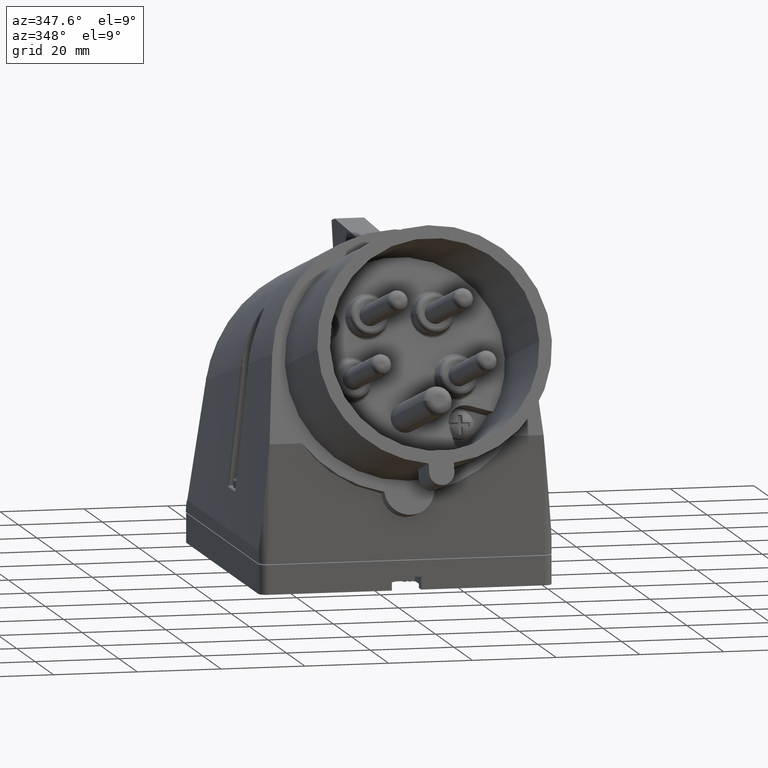
[diagram: clean part render]
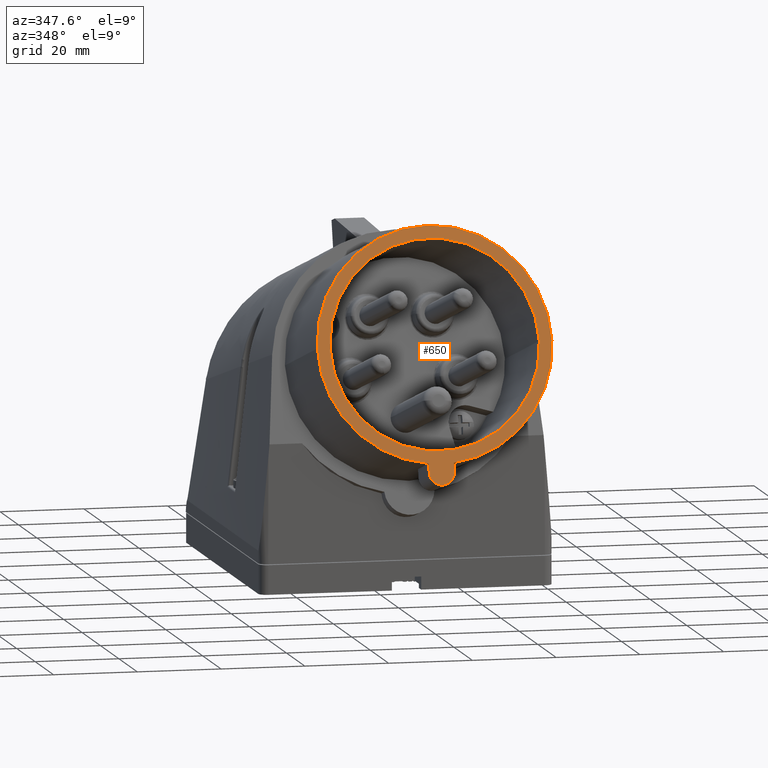
[diagram: same view with one face highlighted and labeled with its STEP entity id]
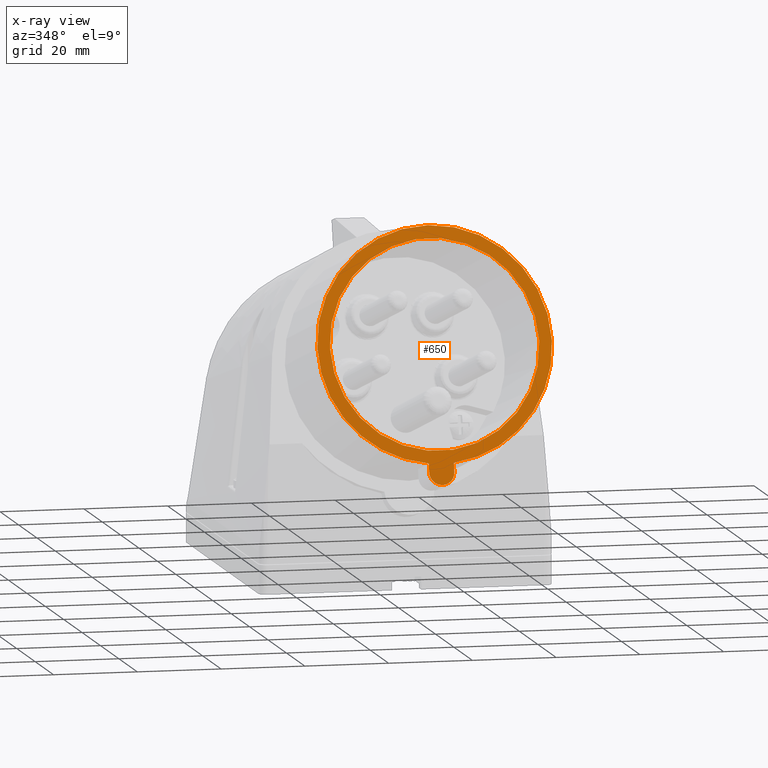
[diagram: x-ray of the same camera — body ghosted, the highlighted face saturated]
A machine part, auxiliary view. The second image highlights one B-rep face of the part: STEP entity #650.
The next image is the same camera in x-ray: the body ghosted, the highlighted face saturated — about 0% of this face is hidden behind the body in this view.
In plain terms, the highlighted planar face has unit normal (0, 0.9659, -0.2588).
Its self-contained STEP definition (entity closure, byte-faithful):
#10=CARTESIAN_POINT('',(20.9194496280362,25.1695350611375,
3.17347363356523));
#20=DIRECTION('',(0.,0.965925826289068,-0.258819045102521));
#30=DIRECTION('',(-1.,0.,0.));
#40=AXIS2_PLACEMENT_3D('',#10,#20,#30);
#50=PLANE('',#40);
#60=CARTESIAN_POINT('',(44.,39.1903855437496,55.5));
#70=DIRECTION('',(0.,0.965925826289068,-0.258819045102521));
#80=DIRECTION('',(-1.,0.,0.));
#90=AXIS2_PLACEMENT_3D('',#60,#70,#80);
#100=CIRCLE('',#90,25.);
#110=CARTESIAN_POINT('',(19.,39.1903855437496,55.5));
#120=VERTEX_POINT('',#110);
#130=CARTESIAN_POINT('',(69.,39.1903855437496,55.5));
#140=VERTEX_POINT('',#130);
#150=EDGE_CURVE('',#120,#140,#100,.T.);
#160=ORIENTED_EDGE('',*,*,#150,.T.);
#170=EDGE_CURVE('',#140,#120,#100,.T.);
#180=ORIENTED_EDGE('',*,*,#170,.T.);
#190=EDGE_LOOP('',(#180,#160));
#200=FACE_BOUND('',#190,.T.);
#210=CARTESIAN_POINT('',(47.,32.2022713259815,29.4200026901952));
#220=DIRECTION('',(0.,-0.258819045102521,-0.965925826289068));
#230=VECTOR('',#220,1.);
#240=LINE('',#210,#230);
#250=CARTESIAN_POINT('',(47.,31.985168265032,28.6097630362529));
#260=VERTEX_POINT('',#250);
#270=CARTESIAN_POINT('',(47.,31.425814190674,26.522225211328));
#280=VERTEX_POINT('',#270);
#290=EDGE_CURVE('',#260,#280,#240,.T.);
#300=ORIENTED_EDGE('',*,*,#290,.F.);
#310=CARTESIAN_POINT('',(44.,31.425814190674,26.522225211328));
#320=DIRECTION('',(0.,-0.965925826289068,0.258819045102521));
#330=DIRECTION('',(1.,0.,0.));
#340=AXIS2_PLACEMENT_3D('',#310,#320,#330);
#350=CIRCLE('',#340,3.);
#360=CARTESIAN_POINT('',(41.,31.425814190674,26.522225211328));
#370=VERTEX_POINT('',#360);
#380=EDGE_CURVE('',#370,#280,#350,.T.);
#390=ORIENTED_EDGE('',*,*,#380,.T.);
#400=CARTESIAN_POINT('',(41.,30.6493570553664,23.6244477324607));
#410=DIRECTION('',(0.,0.258819045102521,0.965925826289068));
#420=VECTOR('',#410,1.);
#430=LINE('',#400,#420);
#440=CARTESIAN_POINT('',(41.,31.985168265032,28.6097630362529));
#450=VERTEX_POINT('',#440);
#460=EDGE_CURVE('',#370,#450,#430,.T.);
#470=ORIENTED_EDGE('',*,*,#460,.F.);
#480=CARTESIAN_POINT('',(44.,39.1903855437496,55.5));
#490=DIRECTION('',(0.,0.965925826289068,-0.258819045102521));
#500=DIRECTION('',(-1.,0.,0.));
#510=AXIS2_PLACEMENT_3D('',#480,#490,#500);
#520=CIRCLE('',#510,28.);
#530=CARTESIAN_POINT('',(16.,39.1903855437496,55.5));
#540=VERTEX_POINT('',#530);
#550=EDGE_CURVE('',#450,#540,#520,.T.);
#560=ORIENTED_EDGE('',*,*,#550,.F.);
#570=CARTESIAN_POINT('',(72.,39.1903855437496,55.5));
#580=VERTEX_POINT('',#570);
#590=EDGE_CURVE('',#540,#580,#520,.T.);
#600=ORIENTED_EDGE('',*,*,#590,.F.);
#610=EDGE_CURVE('',#580,#260,#520,.T.);
#620=ORIENTED_EDGE('',*,*,#610,.F.);
#630=EDGE_LOOP('',(#620,#600,#560,#470,#390,#300));
#640=FACE_OUTER_BOUND('',#630,.T.);
#650=ADVANCED_FACE('',(#200,#640),#50,.F.);